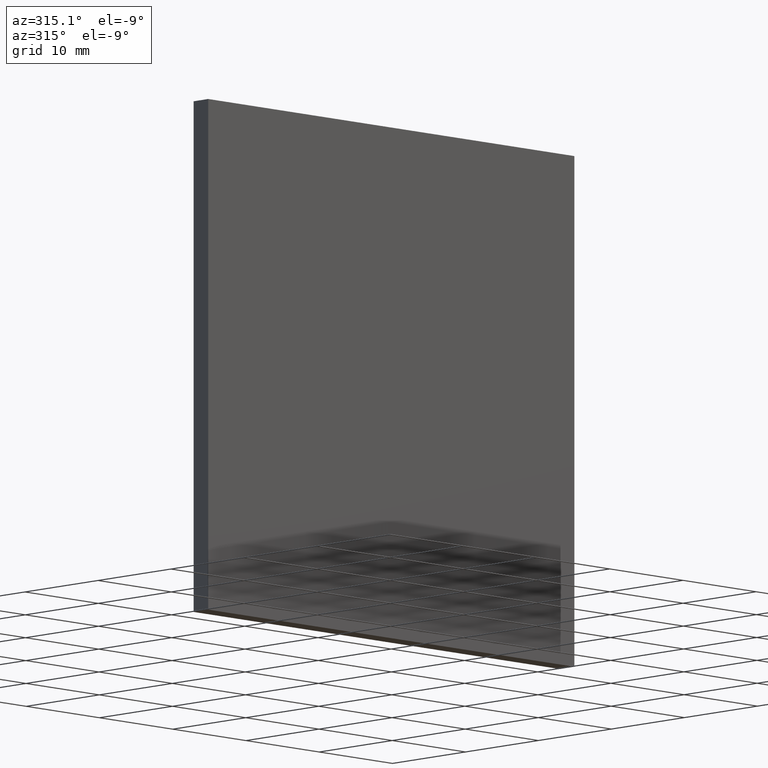
[diagram: clean part render]
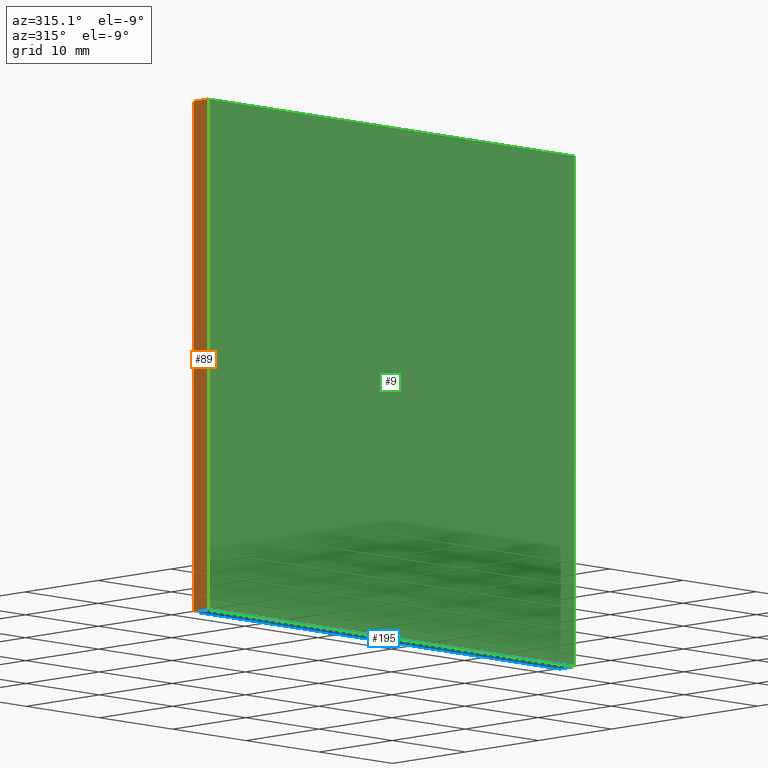
[diagram: same view with three faces highlighted in distinct colors, each labeled with its STEP entity id]
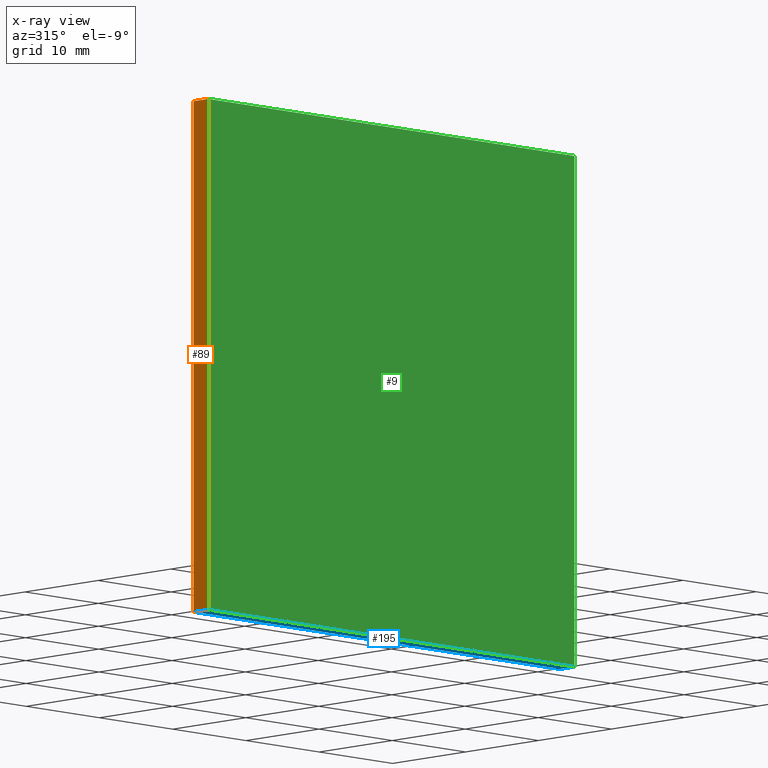
[diagram: x-ray of the same camera — body ghosted, the three highlighted faces saturated]
A machine part, auxiliary view with three faces highlighted in distinct colors.
The next image is the same camera in x-ray (body ghosted, the three faces saturated) — at least one of them is partly hidden behind the body in this view.
Their STEP definitions:

[orange] entity #89 — the highlighted planar face has unit normal (1, -0, 0).
#7 = CARTESIAN_POINT ( 'NONE',  ( -25.00000000000000000, 2.000000000000000000, 25.00000000000000000 ) ) ;
#10 = CARTESIAN_POINT ( 'NONE',  ( -25.00000000000000000, 2.000000000000000000, 25.00000000000000000 ) ) ;
#11 = EDGE_CURVE ( 'NONE', #86, #121, #139, .T. ) ;
#17 = EDGE_CURVE ( 'NONE', #194, #73, #182, .T. ) ;
#18 = ORIENTED_EDGE ( 'NONE', *, *, #97, .T. ) ;
#24 = ORIENTED_EDGE ( 'NONE', *, *, #17, .F. ) ;
#25 = VECTOR ( 'NONE', #90, 1000.000000000000000 ) ;
#41 = EDGE_LOOP ( 'NONE', ( #110, #95, #24, #18 ) ) ;
#57 = CARTESIAN_POINT ( 'NONE',  ( -25.00000000000000000, 2.000000000000000000, -25.00000000000000000 ) ) ;
#59 = CARTESIAN_POINT ( 'NONE',  ( -25.00000000000000000, 2.000000000000000000, 25.00000000000000000 ) ) ;
#63 = CARTESIAN_POINT ( 'NONE',  ( -25.00000000000000000, 2.000000000000000000, 25.00000000000000000 ) ) ;
#65 = VECTOR ( 'NONE', #116, 1000.000000000000000 ) ;
#69 = DIRECTION ( 'NONE',  ( -0.0000000000000000000, -1.000000000000000000, -0.0000000000000000000 ) ) ;
#73 = VERTEX_POINT ( 'NONE', #59 ) ;
#77 = FACE_OUTER_BOUND ( 'NONE', #41, .T. ) ;
#86 = VERTEX_POINT ( 'NONE', #88 ) ;
#87 = DIRECTION ( 'NONE',  ( 1.000000000000000000, -0.0000000000000000000, 0.0000000000000000000 ) ) ;
#88 = CARTESIAN_POINT ( 'NONE',  ( -25.00000000000000000, 0.0000000000000000000, -25.00000000000000000 ) ) ;
#89 = ADVANCED_FACE ( 'NONE', ( #77 ), #114, .F. ) ;
#90 = DIRECTION ( 'NONE',  ( -0.0000000000000000000, -0.0000000000000000000, 1.000000000000000000 ) ) ;
#95 = ORIENTED_EDGE ( 'NONE', *, *, #147, .F. ) ;
#97 = EDGE_CURVE ( 'NONE', #194, #86, #118, .T. ) ;
#98 = VECTOR ( 'NONE', #69, 1000.000000000000000 ) ;
#110 = ORIENTED_EDGE ( 'NONE', *, *, #11, .T. ) ;
#114 = PLANE ( 'NONE',  #166 ) ;
#116 = DIRECTION ( 'NONE',  ( -0.0000000000000000000, -0.0000000000000000000, 1.000000000000000000 ) ) ;
#118 = LINE ( 'NONE', #57, #156 ) ;
#121 = VERTEX_POINT ( 'NONE', #126 ) ;
#126 = CARTESIAN_POINT ( 'NONE',  ( -25.00000000000000000, 0.0000000000000000000, 25.00000000000000000 ) ) ;
#134 = CARTESIAN_POINT ( 'NONE',  ( -25.00000000000000000, 2.000000000000000000, -25.00000000000000000 ) ) ;
#135 = LINE ( 'NONE', #63, #98 ) ;
#139 = LINE ( 'NONE', #197, #25 ) ;
#147 = EDGE_CURVE ( 'NONE', #73, #121, #135, .T. ) ;
#156 = VECTOR ( 'NONE', #158, 1000.000000000000000 ) ;
#158 = DIRECTION ( 'NONE',  ( -0.0000000000000000000, -1.000000000000000000, -0.0000000000000000000 ) ) ;
#166 = AXIS2_PLACEMENT_3D ( 'NONE', #7, #87, #173 ) ;
#173 = DIRECTION ( 'NONE',  ( 0.0000000000000000000, 0.0000000000000000000, -1.000000000000000000 ) ) ;
#182 = LINE ( 'NONE', #10, #65 ) ;
#194 = VERTEX_POINT ( 'NONE', #134 ) ;
#197 = CARTESIAN_POINT ( 'NONE',  ( -25.00000000000000000, 0.0000000000000000000, 25.00000000000000000 ) ) ;

[blue] entity #195 — the highlighted planar face has unit normal (0, 0, 1).
#2 = EDGE_CURVE ( 'NONE', #154, #149, #189, .T. ) ;
#4 = ORIENTED_EDGE ( 'NONE', *, *, #2, .T. ) ;
#14 = ORIENTED_EDGE ( 'NONE', *, *, #55, .F. ) ;
#22 = FACE_OUTER_BOUND ( 'NONE', #53, .T. ) ;
#29 = CARTESIAN_POINT ( 'NONE',  ( 25.00000000000000000, 0.0000000000000000000, -25.00000000000000000 ) ) ;
#38 = ORIENTED_EDGE ( 'NONE', *, *, #97, .F. ) ;
#39 = LINE ( 'NONE', #143, #152 ) ;
#45 = CARTESIAN_POINT ( 'NONE',  ( 25.00000000000000000, 2.000000000000000000, -25.00000000000000000 ) ) ;
#53 = EDGE_LOOP ( 'NONE', ( #193, #38, #14, #4 ) ) ;
#54 = AXIS2_PLACEMENT_3D ( 'NONE', #133, #67, #164 ) ;
#55 = EDGE_CURVE ( 'NONE', #154, #194, #101, .T. ) ;
#57 = CARTESIAN_POINT ( 'NONE',  ( -25.00000000000000000, 2.000000000000000000, -25.00000000000000000 ) ) ;
#60 = DIRECTION ( 'NONE',  ( -1.000000000000000000, -0.0000000000000000000, -0.0000000000000000000 ) ) ;
#67 = DIRECTION ( 'NONE',  ( 0.0000000000000000000, 0.0000000000000000000, 1.000000000000000000 ) ) ;
#71 = CARTESIAN_POINT ( 'NONE',  ( 25.00000000000000000, 2.000000000000000000, -25.00000000000000000 ) ) ;
#84 = EDGE_CURVE ( 'NONE', #149, #86, #39, .T. ) ;
#86 = VERTEX_POINT ( 'NONE', #88 ) ;
#88 = CARTESIAN_POINT ( 'NONE',  ( -25.00000000000000000, 0.0000000000000000000, -25.00000000000000000 ) ) ;
#97 = EDGE_CURVE ( 'NONE', #194, #86, #118, .T. ) ;
#101 = LINE ( 'NONE', #160, #175 ) ;
#118 = LINE ( 'NONE', #57, #156 ) ;
#127 = DIRECTION ( 'NONE',  ( -1.000000000000000000, -0.0000000000000000000, -0.0000000000000000000 ) ) ;
#129 = DIRECTION ( 'NONE',  ( -0.0000000000000000000, -1.000000000000000000, -0.0000000000000000000 ) ) ;
#133 = CARTESIAN_POINT ( 'NONE',  ( -25.00000000000000000, 2.000000000000000000, -25.00000000000000000 ) ) ;
#134 = CARTESIAN_POINT ( 'NONE',  ( -25.00000000000000000, 2.000000000000000000, -25.00000000000000000 ) ) ;
#142 = VECTOR ( 'NONE', #129, 1000.000000000000000 ) ;
#143 = CARTESIAN_POINT ( 'NONE',  ( -25.00000000000000000, 0.0000000000000000000, -25.00000000000000000 ) ) ;
#149 = VERTEX_POINT ( 'NONE', #29 ) ;
#152 = VECTOR ( 'NONE', #127, 1000.000000000000000 ) ;
#154 = VERTEX_POINT ( 'NONE', #45 ) ;
#156 = VECTOR ( 'NONE', #158, 1000.000000000000000 ) ;
#158 = DIRECTION ( 'NONE',  ( -0.0000000000000000000, -1.000000000000000000, -0.0000000000000000000 ) ) ;
#160 = CARTESIAN_POINT ( 'NONE',  ( -25.00000000000000000, 2.000000000000000000, -25.00000000000000000 ) ) ;
#164 = DIRECTION ( 'NONE',  ( 1.000000000000000000, 0.0000000000000000000, -0.0000000000000000000 ) ) ;
#175 = VECTOR ( 'NONE', #60, 1000.000000000000000 ) ;
#178 = PLANE ( 'NONE',  #54 ) ;
#189 = LINE ( 'NONE', #71, #142 ) ;
#193 = ORIENTED_EDGE ( 'NONE', *, *, #84, .T. ) ;
#194 = VERTEX_POINT ( 'NONE', #134 ) ;
#195 = ADVANCED_FACE ( 'NONE', ( #22 ), #178, .F. ) ;

[green] entity #9 — the highlighted planar face has unit normal (0, -1, 0).
#9 = ADVANCED_FACE ( 'NONE', ( #105 ), #177, .T. ) ;
#11 = EDGE_CURVE ( 'NONE', #86, #121, #139, .T. ) ;
#25 = VECTOR ( 'NONE', #90, 1000.000000000000000 ) ;
#26 = DIRECTION ( 'NONE',  ( 0.0000000000000000000, 0.0000000000000000000, -1.000000000000000000 ) ) ;
#27 = DIRECTION ( 'NONE',  ( 0.0000000000000000000, -0.0000000000000000000, -1.000000000000000000 ) ) ;
#29 = CARTESIAN_POINT ( 'NONE',  ( 25.00000000000000000, 0.0000000000000000000, -25.00000000000000000 ) ) ;
#36 = LINE ( 'NONE', #102, #111 ) ;
#37 = VECTOR ( 'NONE', #184, 1000.000000000000000 ) ;
#39 = LINE ( 'NONE', #143, #152 ) ;
#52 = EDGE_LOOP ( 'NONE', ( #169, #79, #150, #119 ) ) ;
#56 = VERTEX_POINT ( 'NONE', #176 ) ;
#72 = EDGE_CURVE ( 'NONE', #56, #149, #36, .T. ) ;
#79 = ORIENTED_EDGE ( 'NONE', *, *, #167, .F. ) ;
#84 = EDGE_CURVE ( 'NONE', #149, #86, #39, .T. ) ;
#86 = VERTEX_POINT ( 'NONE', #88 ) ;
#88 = CARTESIAN_POINT ( 'NONE',  ( -25.00000000000000000, 0.0000000000000000000, -25.00000000000000000 ) ) ;
#90 = DIRECTION ( 'NONE',  ( -0.0000000000000000000, -0.0000000000000000000, 1.000000000000000000 ) ) ;
#102 = CARTESIAN_POINT ( 'NONE',  ( 25.00000000000000000, 0.0000000000000000000, 25.00000000000000000 ) ) ;
#105 = FACE_OUTER_BOUND ( 'NONE', #52, .T. ) ;
#109 = LINE ( 'NONE', #202, #37 ) ;
#111 = VECTOR ( 'NONE', #26, 1000.000000000000000 ) ;
#119 = ORIENTED_EDGE ( 'NONE', *, *, #84, .F. ) ;
#121 = VERTEX_POINT ( 'NONE', #126 ) ;
#126 = CARTESIAN_POINT ( 'NONE',  ( -25.00000000000000000, 0.0000000000000000000, 25.00000000000000000 ) ) ;
#127 = DIRECTION ( 'NONE',  ( -1.000000000000000000, -0.0000000000000000000, -0.0000000000000000000 ) ) ;
#128 = DIRECTION ( 'NONE',  ( 0.0000000000000000000, -1.000000000000000000, 0.0000000000000000000 ) ) ;
#139 = LINE ( 'NONE', #197, #25 ) ;
#143 = CARTESIAN_POINT ( 'NONE',  ( -25.00000000000000000, 0.0000000000000000000, -25.00000000000000000 ) ) ;
#149 = VERTEX_POINT ( 'NONE', #29 ) ;
#150 = ORIENTED_EDGE ( 'NONE', *, *, #11, .F. ) ;
#152 = VECTOR ( 'NONE', #127, 1000.000000000000000 ) ;
#167 = EDGE_CURVE ( 'NONE', #121, #56, #109, .T. ) ;
#169 = ORIENTED_EDGE ( 'NONE', *, *, #72, .F. ) ;
#170 = AXIS2_PLACEMENT_3D ( 'NONE', #198, #128, #27 ) ;
#176 = CARTESIAN_POINT ( 'NONE',  ( 25.00000000000000000, 0.0000000000000000000, 25.00000000000000000 ) ) ;
#177 = PLANE ( 'NONE',  #170 ) ;
#184 = DIRECTION ( 'NONE',  ( 1.000000000000000000, 0.0000000000000000000, 0.0000000000000000000 ) ) ;
#197 = CARTESIAN_POINT ( 'NONE',  ( -25.00000000000000000, 0.0000000000000000000, 25.00000000000000000 ) ) ;
#198 = CARTESIAN_POINT ( 'NONE',  ( 0.0000000000000000000, 0.0000000000000000000, 0.0000000000000000000 ) ) ;
#202 = CARTESIAN_POINT ( 'NONE',  ( -25.00000000000000000, 0.0000000000000000000, 25.00000000000000000 ) ) ;